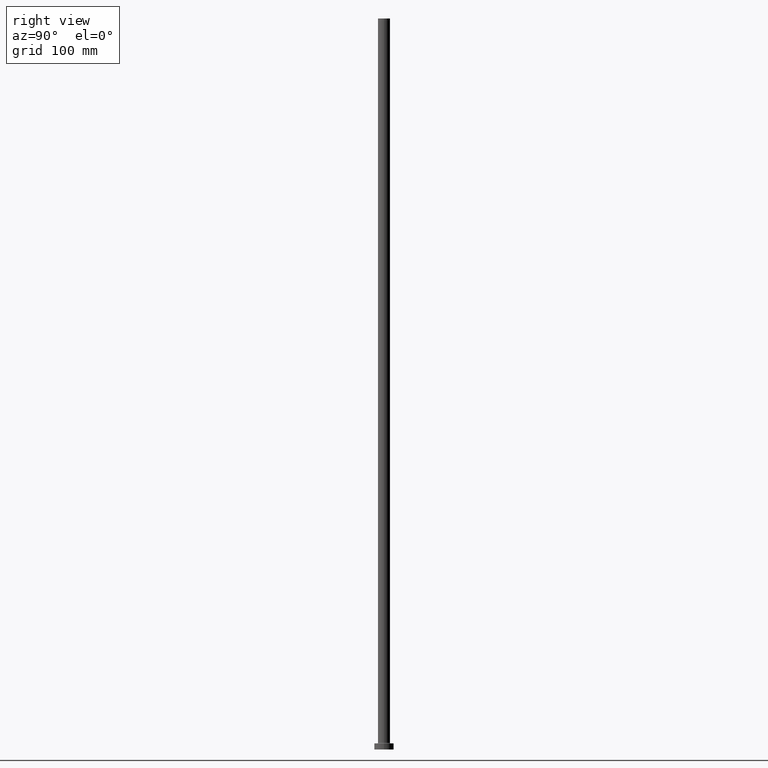
[diagram: clean part render]
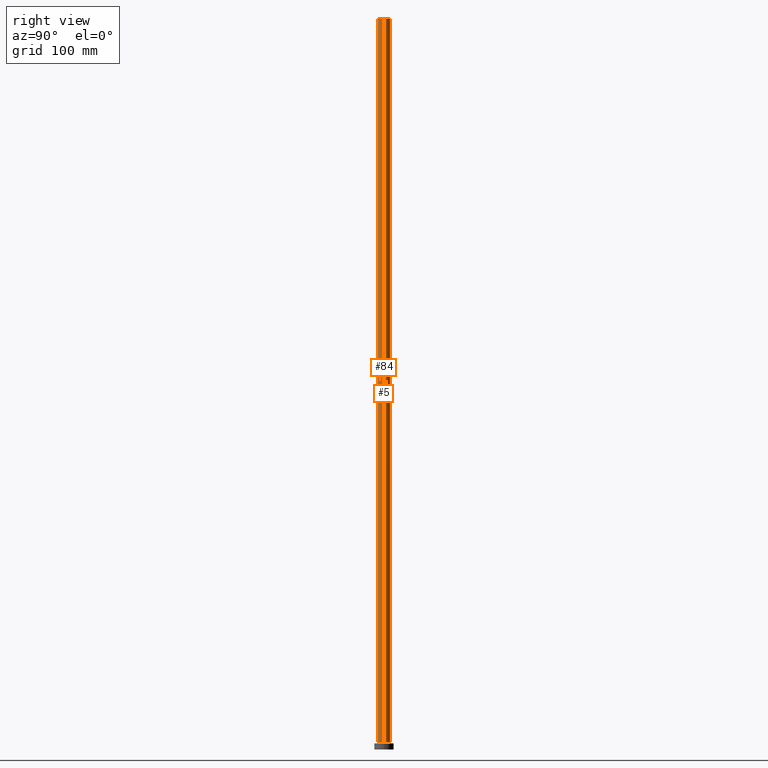
[diagram: same view with one multi-face feature highlighted, each face labeled with its STEP entity id]
A machine part, right view. The highlighted faces form ONE feature: a constant-radius fillet chain: 2 tangent blend faces with common blend radius 5 mm. The faces share edges in the B-rep.
Their STEP definitions:
[1] entity #5 (Cylinder):
#5 = ADVANCED_FACE ( 'NONE', ( #229 ), #393, .T. ) ;
#37 = VERTEX_POINT ( 'NONE', #357 ) ;
#39 = AXIS2_PLACEMENT_3D ( 'NONE', #245, #166, #73 ) ;
#67 = DIRECTION ( 'NONE',  ( -0.000000000000000000, -0.000000000000000000, -1.000000000000000000 ) ) ;
#72 = CIRCLE ( 'NONE', #39, 5.000000000000000000 ) ;
#73 = DIRECTION ( 'NONE',  ( 1.000000000000000000, 0.000000000000000000, 0.000000000000000000 ) ) ;
#79 = EDGE_CURVE ( 'NONE', #280, #207, #395, .T. ) ;
#90 = LINE ( 'NONE', #122, #347 ) ;
#95 = DIRECTION ( 'NONE',  ( 0.000000000000000000, 0.000000000000000000, 1.000000000000000000 ) ) ;
#102 = EDGE_CURVE ( 'NONE', #37, #207, #297, .T. ) ;
#116 = DIRECTION ( 'NONE',  ( -0.000000000000000000, -0.000000000000000000, -1.000000000000000000 ) ) ;
#122 = CARTESIAN_POINT ( 'NONE',  ( 5.000000000000000000, 6.123233995736766282E-16, 600.0000000000000000 ) ) ;
#125 = AXIS2_PLACEMENT_3D ( 'NONE', #418, #95, #230 ) ;
#138 = CARTESIAN_POINT ( 'NONE',  ( 5.000000000000000000, 6.123233995736766282E-16, 5.499999999999949374 ) ) ;
#158 = DIRECTION ( 'NONE',  ( -0.000000000000000000, -0.000000000000000000, -1.000000000000000000 ) ) ;
#162 = ORIENTED_EDGE ( 'NONE', *, *, #435, .T. ) ;
#166 = DIRECTION ( 'NONE',  ( 0.000000000000000000, 0.000000000000000000, 1.000000000000000000 ) ) ;
#207 = VERTEX_POINT ( 'NONE', #450 ) ;
#229 = FACE_OUTER_BOUND ( 'NONE', #362, .T. ) ;
#230 = DIRECTION ( 'NONE',  ( 1.000000000000000000, 0.000000000000000000, 0.000000000000000000 ) ) ;
#236 = CARTESIAN_POINT ( 'NONE',  ( 5.000000000000000000, 6.123233995736766282E-16, 600.0000000000000000 ) ) ;
#245 = CARTESIAN_POINT ( 'NONE',  ( 0.000000000000000000, 0.000000000000000000, 600.0000000000000000 ) ) ;
#252 = VECTOR ( 'NONE', #116, 1000.000000000000000 ) ;
#259 = EDGE_CURVE ( 'NONE', #389, #37, #72, .T. ) ;
#280 = VERTEX_POINT ( 'NONE', #138 ) ;
#290 = ORIENTED_EDGE ( 'NONE', *, *, #79, .T. ) ;
#292 = AXIS2_PLACEMENT_3D ( 'NONE', #415, #67, #391 ) ;
#297 = LINE ( 'NONE', #367, #252 ) ;
#320 = ORIENTED_EDGE ( 'NONE', *, *, #102, .F. ) ;
#347 = VECTOR ( 'NONE', #158, 1000.000000000000000 ) ;
#357 = CARTESIAN_POINT ( 'NONE',  ( -5.000000000000000000, 0.000000000000000000, 600.0000000000000000 ) ) ;
#362 = EDGE_LOOP ( 'NONE', ( #399, #162, #290, #320 ) ) ;
#367 = CARTESIAN_POINT ( 'NONE',  ( -5.000000000000000000, 0.000000000000000000, 600.0000000000000000 ) ) ;
#389 = VERTEX_POINT ( 'NONE', #236 ) ;
#391 = DIRECTION ( 'NONE',  ( -1.000000000000000000, 0.000000000000000000, 0.000000000000000000 ) ) ;
#393 = CYLINDRICAL_SURFACE ( 'NONE', #292, 5.000000000000000000 ) ;
#395 = CIRCLE ( 'NONE', #125, 5.000000000000000000 ) ;
#399 = ORIENTED_EDGE ( 'NONE', *, *, #259, .F. ) ;
#415 = CARTESIAN_POINT ( 'NONE',  ( 0.000000000000000000, 0.000000000000000000, 600.0000000000000000 ) ) ;
#418 = CARTESIAN_POINT ( 'NONE',  ( 0.000000000000000000, 0.000000000000000000, 5.499999999999949374 ) ) ;
#435 = EDGE_CURVE ( 'NONE', #389, #280, #90, .T. ) ;
#450 = CARTESIAN_POINT ( 'NONE',  ( -5.000000000000000000, 0.000000000000000000, 5.499999999999949374 ) ) ;
[2] entity #84 (Cylinder):
#37 = VERTEX_POINT ( 'NONE', #357 ) ;
#63 = CIRCLE ( 'NONE', #174, 5.000000000000000000 ) ;
#84 = ADVANCED_FACE ( 'NONE', ( #140 ), #324, .T. ) ;
#90 = LINE ( 'NONE', #122, #347 ) ;
#96 = DIRECTION ( 'NONE',  ( 0.000000000000000000, 0.000000000000000000, 1.000000000000000000 ) ) ;
#102 = EDGE_CURVE ( 'NONE', #37, #207, #297, .T. ) ;
#116 = DIRECTION ( 'NONE',  ( -0.000000000000000000, -0.000000000000000000, -1.000000000000000000 ) ) ;
#122 = CARTESIAN_POINT ( 'NONE',  ( 5.000000000000000000, 6.123233995736766282E-16, 600.0000000000000000 ) ) ;
#138 = CARTESIAN_POINT ( 'NONE',  ( 5.000000000000000000, 6.123233995736766282E-16, 5.499999999999949374 ) ) ;
#140 = FACE_OUTER_BOUND ( 'NONE', #157, .T. ) ;
#143 = DIRECTION ( 'NONE',  ( -1.000000000000000000, 0.000000000000000000, 0.000000000000000000 ) ) ;
#147 = AXIS2_PLACEMENT_3D ( 'NONE', #154, #344, #338 ) ;
#154 = CARTESIAN_POINT ( 'NONE',  ( 0.000000000000000000, 0.000000000000000000, 600.0000000000000000 ) ) ;
#157 = EDGE_LOOP ( 'NONE', ( #295, #241, #332, #239 ) ) ;
#158 = DIRECTION ( 'NONE',  ( -0.000000000000000000, -0.000000000000000000, -1.000000000000000000 ) ) ;
#161 = AXIS2_PLACEMENT_3D ( 'NONE', #358, #237, #143 ) ;
#164 = EDGE_CURVE ( 'NONE', #207, #280, #63, .T. ) ;
#174 = AXIS2_PLACEMENT_3D ( 'NONE', #307, #96, #265 ) ;
#207 = VERTEX_POINT ( 'NONE', #450 ) ;
#236 = CARTESIAN_POINT ( 'NONE',  ( 5.000000000000000000, 6.123233995736766282E-16, 600.0000000000000000 ) ) ;
#237 = DIRECTION ( 'NONE',  ( -0.000000000000000000, -0.000000000000000000, -1.000000000000000000 ) ) ;
#239 = ORIENTED_EDGE ( 'NONE', *, *, #164, .T. ) ;
#241 = ORIENTED_EDGE ( 'NONE', *, *, #422, .F. ) ;
#252 = VECTOR ( 'NONE', #116, 1000.000000000000000 ) ;
#265 = DIRECTION ( 'NONE',  ( 1.000000000000000000, 0.000000000000000000, 0.000000000000000000 ) ) ;
#280 = VERTEX_POINT ( 'NONE', #138 ) ;
#295 = ORIENTED_EDGE ( 'NONE', *, *, #435, .F. ) ;
#297 = LINE ( 'NONE', #367, #252 ) ;
#307 = CARTESIAN_POINT ( 'NONE',  ( 0.000000000000000000, 0.000000000000000000, 5.499999999999949374 ) ) ;
#311 = CIRCLE ( 'NONE', #147, 5.000000000000000000 ) ;
#324 = CYLINDRICAL_SURFACE ( 'NONE', #161, 5.000000000000000000 ) ;
#332 = ORIENTED_EDGE ( 'NONE', *, *, #102, .T. ) ;
#338 = DIRECTION ( 'NONE',  ( 1.000000000000000000, 0.000000000000000000, 0.000000000000000000 ) ) ;
#344 = DIRECTION ( 'NONE',  ( 0.000000000000000000, 0.000000000000000000, 1.000000000000000000 ) ) ;
#347 = VECTOR ( 'NONE', #158, 1000.000000000000000 ) ;
#357 = CARTESIAN_POINT ( 'NONE',  ( -5.000000000000000000, 0.000000000000000000, 600.0000000000000000 ) ) ;
#358 = CARTESIAN_POINT ( 'NONE',  ( 0.000000000000000000, 0.000000000000000000, 600.0000000000000000 ) ) ;
#367 = CARTESIAN_POINT ( 'NONE',  ( -5.000000000000000000, 0.000000000000000000, 600.0000000000000000 ) ) ;
#389 = VERTEX_POINT ( 'NONE', #236 ) ;
#422 = EDGE_CURVE ( 'NONE', #37, #389, #311, .T. ) ;
#435 = EDGE_CURVE ( 'NONE', #389, #280, #90, .T. ) ;
#450 = CARTESIAN_POINT ( 'NONE',  ( -5.000000000000000000, 0.000000000000000000, 5.499999999999949374 ) ) ;